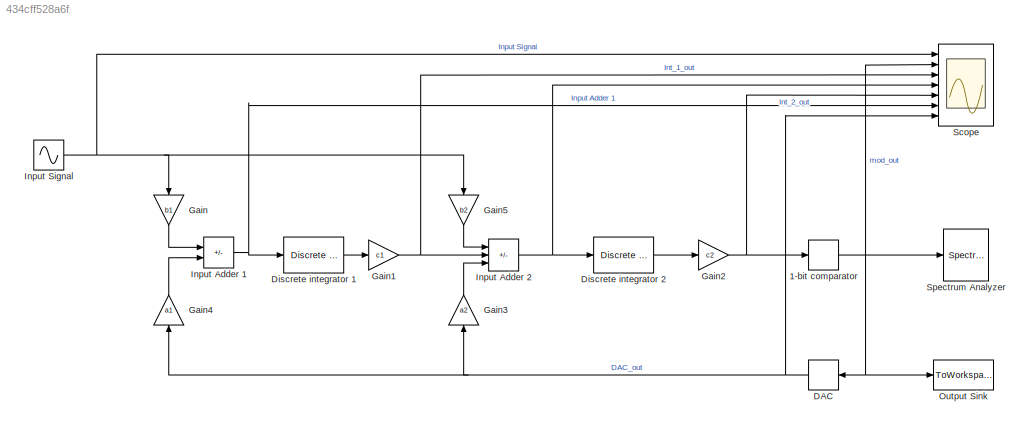
MODEL slx_434cff528a6f
KIND model
CONFIG AbsTol = auto
CONFIG EnableMultiTasking = off
CONFIG FixedStep = auto
CONFIG MaxStep = auto
CONFIG MinStep = auto
CONFIG RelTol = 1e-3
CONFIG SampleTimeConstraint = Unconstrained
CONFIG SolverName = VariableStepAuto
CONFIG StartTime = 0.0
CONFIG StopTime = t_sim - 1/51.2e6
BLOCK [Relay] 1-bit comparator
  OffOutputValue = -1
  OffSwitchValue = 0
  OnSwitchValue = 0
BLOCK [Relay] DAC
  OffOutputValue = vref_n
  OffSwitchValue = -1
  OnOutputValue = vref_p
  OnSwitchValue = 1
BLOCK [Reference] Discrete integrator 1  REF=simulink_extras/Additional
Discrete/Discrete
Transfer Fcn
(with initial states)
  Ports = [1, 1]
  SourceBlock = simulink_extras/Additional\nDiscrete/Discrete\nTransfer Fcn\n(with initial states)
  SourceProductBaseCode = SL
  SourceType = Discrete Transfer Function with Initial States
BLOCK [Reference] Discrete integrator 2  REF=simulink_extras/Additional
Discrete/Discrete
Transfer Fcn
(with initial states)
  Ports = [1, 1]
  SourceBlock = simulink_extras/Additional\nDiscrete/Discrete\nTransfer Fcn\n(with initial states)
  SourceProductBaseCode = SL
  SourceType = Discrete Transfer Function with Initial States
BLOCK [Gain] Gain
  Gain = b1
  NameLocation = left
BLOCK [Gain] Gain1
  Gain = c1
BLOCK [Gain] Gain2
  Gain = c2
BLOCK [Gain] Gain3
  Gain = a2
  NameLocation = right
BLOCK [Gain] Gain4
  Gain = a1
  NameLocation = right
BLOCK [Gain] Gain5
  Gain = b2
  NameLocation = left
BLOCK [Sum] Input Adder 1
  IconShape = rectangular
  Inputs = +-
  Ports = [2, 1]
BLOCK [Sum] Input Adder 2 
  IconShape = rectangular
  Inputs = ++-
  Ports = [3, 1]
BLOCK [Sin] Input Signal
  Amplitude = 0.7*0.9
  Frequency = f*2*pi
  Ports = [0, 1]
  SampleTime = 1/(f_sampling)
BLOCK [ToWorkspace] Output Sink 
  FixptAsFi = on
  MaxDataPoints = inf
  Ports = [1]
  SampleTime = -1
  SaveFormat = Timeseries
  VariableName = simout
BLOCK [Scope] Scope
  Floating = off
  NumInputPorts = 7
  Ports = [7]
  ScopeSpecificationString = Simulink.scopes.TimeScopeBlockCfg('CurrentConfiguration', extmgr.ConfigurationSet(extmgr.Configuration('Core','General UI',true),extmgr.Configuration('Core','Source UI',true),extmgr.Configuration('Sources','WiredSimulink',true),extmgr.Configuration('Visuals','Time Domain',true,'SerializedDisplays',{struct('MinYLimReal','-0.7875','MaxYLimReal','0.7875','YLabelReal','','MinYLimMag','0.00000','MaxYLi...<+6563ch>
BLOCK [SpectrumAnalyzer] Spectrum Analyzer
  Commented = on
  Ports = [1]
  ScopeSpecificationString = spbscopes.SpectrumAnalyzerBlockCfg('CurrentConfiguration', extmgr.ConfigurationSet(extmgr.Configuration('Core','General UI',true),extmgr.Configuration('Core','Source UI',true),extmgr.Configuration('Sources','WiredSimulink',true),extmgr.Configuration('Sources','SimulinkEvent',false),extmgr.Configuration('Sources','Simulink',false),extmgr.Configuration('Sources','File',false),extmgr.Configuration('S...<+3590ch>
NET 1-bit comparator:1 -> DAC:1, Output Sink :1, Scope:2, Spectrum Analyzer:1
NET DAC:1 -> Gain3:1, Gain4:1, Scope:7
LINE Discrete integrator 1:1 -> Gain1:1
LINE Discrete integrator 2:1 -> Gain2:1
NET Gain1:1 -> Input Adder 2 :2, Scope:3
NET Gain2:1 -> 1-bit comparator:1, Scope:5
LINE Gain3:1 -> Input Adder 2 :3
LINE Gain4:1 -> Input Adder 1:2
LINE Gain5:1 -> Input Adder 2 :1
LINE Gain:1 -> Input Adder 1:1
NET Input Adder 1:1 -> Discrete integrator 1:1, Scope:6
NET Input Adder 2 :1 -> Discrete integrator 2:1, Scope:4
NET Input Signal:1 -> Gain5:1, Gain:1, Scope:1
note: NET lines group one-source signal fan-out (src -> all destinations, sorted); 1:1 wires keep LINE
